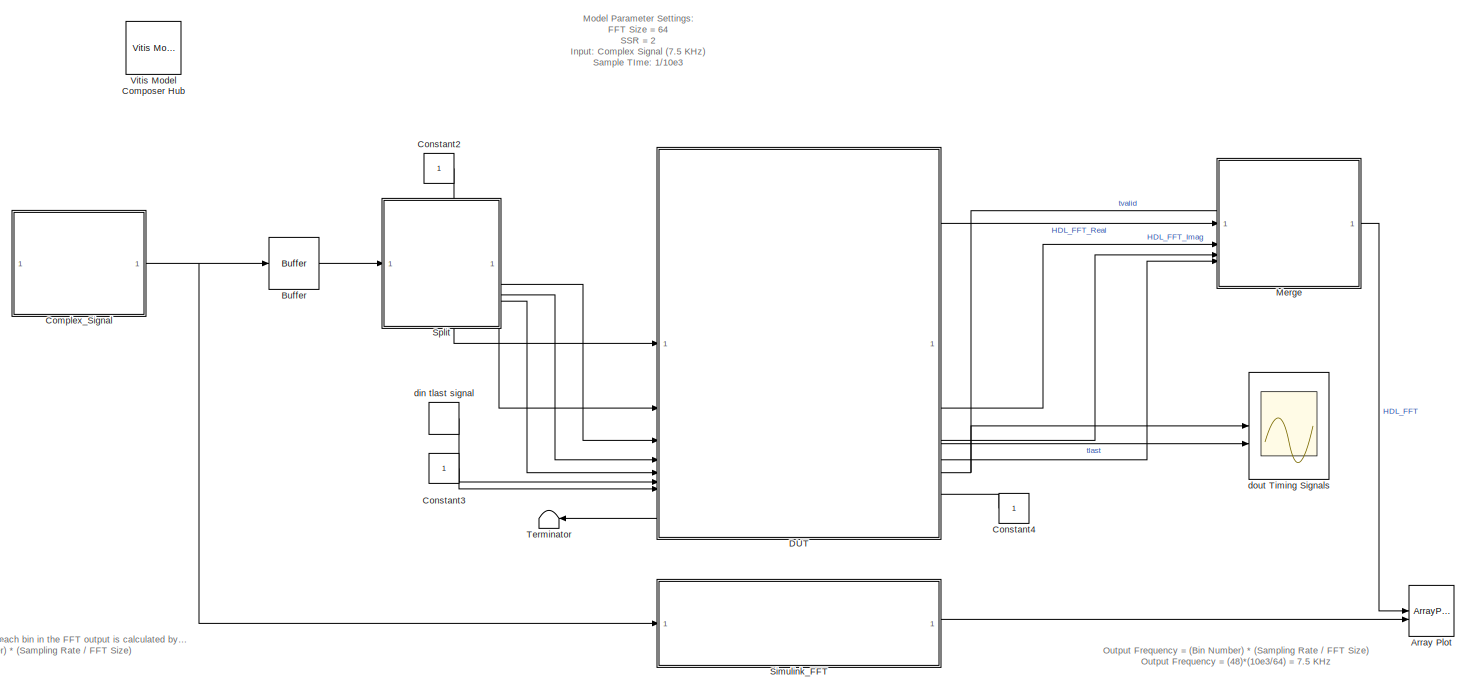
[diagram: root canvas - part 1/3, most of the canvas]
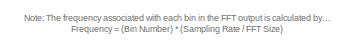
[diagram: root canvas - part 2/3, bottom left region]
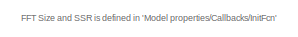
[diagram: root canvas - part 3/3, bottom left region]
MODEL slx_f10399cf9ac3
KIND model
CONFIG AbsTol = auto
CONFIG EnableMultiTasking = on
CONFIG FixedStep = auto
CONFIG InitFcn = FFT_Size = 64;\nSSR = 2;\n
CONFIG MaxStep = auto
CONFIG MinStep = auto
CONFIG RelTol = 1e-3
CONFIG SampleTimeConstraint = Unconstrained
CONFIG SolverName = ode45
CONFIG StartTime = 0.0
CONFIG StopTime = 1024/10e3
BLOCK [ArrayPlot] Array Plot
  GraphicalSettings = {"Style":{"BackgroundColor":[0.12941176470588237,0.12941176470588237,0.12941176470588237],"AxesColor":[0.070588235294117646,0.070588235294117646,0.070588235294117646],"LabelsColor":[0.85098039215686272,0.85098039215686272,0.85098039215686272],"PreserveColors":false,"Visible":[true,true],"LineStyle":["-","-"],"LineWidth":[1.5,1.5],"BarWidth":[0.9,0.9],"LineColor":[[1,0.90980392156862744,0.392156862...<+722ch>
  NumInputPorts = 2
  ScopeFrameLocation = window
  ShowLegend = on
  WasSavedAsWebScope = on
  WindowPosition = [441.000000,53.000000,1920.000000,1149.000000,]
  YLimits = [-0.0625 0.5625]
BLOCK [Buffer] Buffer
  N = 2
  OutputFrames = off
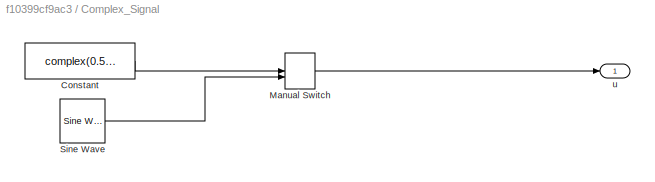
BLOCK [SubSystem] Complex_Signal
BLOCK [Constant] Complex_Signal/Constant
  SampleTime = 1/10e3
  Value = complex(0.5,0)
BLOCK [ManualSwitch] Complex_Signal/Manual Switch
  CurrentSetting = 0
BLOCK [Reference] Complex_Signal/Sine Wave  REF=dspsrcs4/Sine Wave
  LibrarySourceBlock = dsphdlsupportsrcs/Sine Wave
  SourceBlock = dspsrcs4/Sine Wave
  SourceType = Sine Wave
BLOCK [Outport] Complex_Signal/u
BLOCK [Constant] Constant2
BLOCK [Constant] Constant3
BLOCK [Constant] Constant4
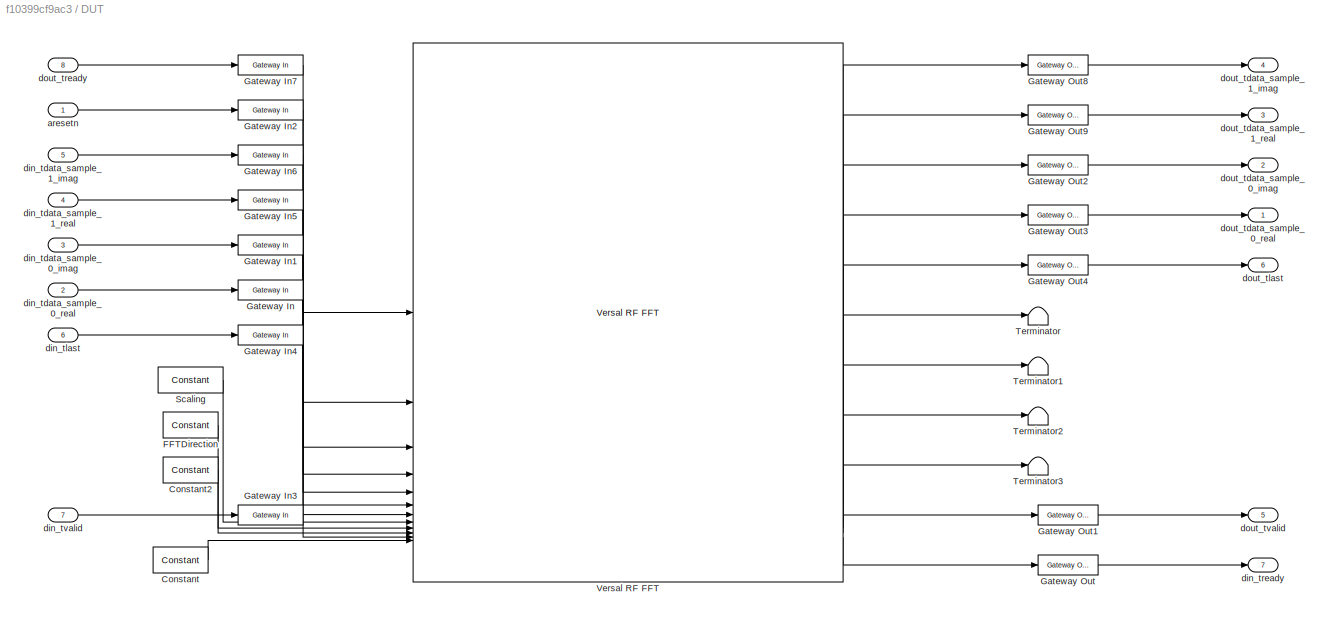
BLOCK [SubSystem] DUT
  PortSchema = {"entries":[{"content":{"sides":[{"content":{"connectorIds":["In1","In2","In3","In4","In5","In6","In7","Out7"]},"type":"ConnectorPlacement.EquallySpacedRectSide","uuid":"7436daa8-65ee-46b9-a81c-9583a83f8d38"},{"content":{"connectorIds":["Out1","Out2","Out3","Out4","Out5","Out6","In8"],"side":"RIGHT"},"type":"ConnectorPlacement.EquallySpacedRectSide","uuid":"6a20372f-450e-4cce-a22e-025dd43b4db4"},{...<+306ch>
BLOCK [Reference] DUT/Constant  REF=hdlBasic/Constant
  SourceBlock = hdlBasic/Constant
  SourceType = Constant Block Block
BLOCK [Reference] DUT/Constant2  REF=hdlBasic/Constant
  SourceBlock = hdlBasic/Constant
  SourceType = Constant Block Block
BLOCK [Reference] DUT/FFTDirection  REF=hdlBasic/Constant
  SourceBlock = hdlBasic/Constant
  SourceType = Constant Block Block
BLOCK [Reference] DUT/Gateway In  REF=hdlBasic/Gateway In
  SourceBlock = hdlBasic/Gateway In
  SourceType = Gateway In Block
BLOCK [Reference] DUT/Gateway In1  REF=hdlBasic/Gateway In
  SourceBlock = hdlBasic/Gateway In
  SourceType = Gateway In Block
BLOCK [Reference] DUT/Gateway In2  REF=hdlBasic/Gateway In
  SourceBlock = hdlBasic/Gateway In
  SourceType = Gateway In Block
BLOCK [Reference] DUT/Gateway In3  REF=hdlBasic/Gateway In
  SourceBlock = hdlBasic/Gateway In
  SourceType = Gateway In Block
BLOCK [Reference] DUT/Gateway In4  REF=hdlBasic/Gateway In
  SourceBlock = hdlBasic/Gateway In
  SourceType = Gateway In Block
BLOCK [Reference] DUT/Gateway In5  REF=hdlBasic/Gateway In
  SourceBlock = hdlBasic/Gateway In
  SourceType = Gateway In Block
BLOCK [Reference] DUT/Gateway In6  REF=hdlBasic/Gateway In
  SourceBlock = hdlBasic/Gateway In
  SourceType = Gateway In Block
BLOCK [Reference] DUT/Gateway In7  REF=hdlBasic/Gateway In
  SourceBlock = hdlBasic/Gateway In
  SourceType = Gateway In Block
BLOCK [Reference] DUT/Gateway Out  REF=hdlBasic/Gateway Out
  SourceBlock = hdlBasic/Gateway Out
  SourceType = Gateway Out Block
BLOCK [Reference] DUT/Gateway Out1  REF=hdlBasic/Gateway Out
  SourceBlock = hdlBasic/Gateway Out
  SourceType = Gateway Out Block
BLOCK [Reference] DUT/Gateway Out2  REF=hdlBasic/Gateway Out
  SourceBlock = hdlBasic/Gateway Out
  SourceType = Gateway Out Block
BLOCK [Reference] DUT/Gateway Out3  REF=hdlBasic/Gateway Out
  SourceBlock = hdlBasic/Gateway Out
  SourceType = Gateway Out Block
BLOCK [Reference] DUT/Gateway Out4  REF=hdlBasic/Gateway Out
  SourceBlock = hdlBasic/Gateway Out
  SourceType = Gateway Out Block
BLOCK [Reference] DUT/Gateway Out8  REF=hdlBasic/Gateway Out
  SourceBlock = hdlBasic/Gateway Out
  SourceType = Gateway Out Block
BLOCK [Reference] DUT/Gateway Out9  REF=hdlBasic/Gateway Out
  SourceBlock = hdlBasic/Gateway Out
  SourceType = Gateway Out Block
BLOCK [Reference] DUT/Scaling  REF=hdlBasic/Constant
  SourceBlock = hdlBasic/Constant
  SourceType = Constant Block Block
BLOCK [Terminator] DUT/Terminator
BLOCK [Terminator] DUT/Terminator1
BLOCK [Terminator] DUT/Terminator2
BLOCK [Terminator] DUT/Terminator3
BLOCK [Reference] DUT/Versal RF FFT  REF=hdlDSPIP/Versal RF FFT
  SourceBlock = hdlDSPIP/Versal RF FFT
  SourceType = Versal RF FFT Block
BLOCK [Inport] DUT/aresetn
BLOCK [Inport] DUT/din_tdata_sample_0_imag
  Port = 3
BLOCK [Inport] DUT/din_tdata_sample_0_real
  Port = 2
BLOCK [Inport] DUT/din_tdata_sample_1_imag
  Port = 5
BLOCK [Inport] DUT/din_tdata_sample_1_real
  Port = 4
BLOCK [Inport] DUT/din_tlast
  Port = 6
BLOCK [Outport] DUT/din_tready
  Port = 7
BLOCK [Inport] DUT/din_tvalid
  Port = 7
BLOCK [Outport] DUT/dout_tdata_sample_0_imag
  Port = 2
BLOCK [Outport] DUT/dout_tdata_sample_0_real
BLOCK [Outport] DUT/dout_tdata_sample_1_imag
  Port = 4
BLOCK [Outport] DUT/dout_tdata_sample_1_real
  Port = 3
BLOCK [Outport] DUT/dout_tlast
  Port = 6
BLOCK [Inport] DUT/dout_tready
  Port = 8
BLOCK [Outport] DUT/dout_tvalid
  Port = 5
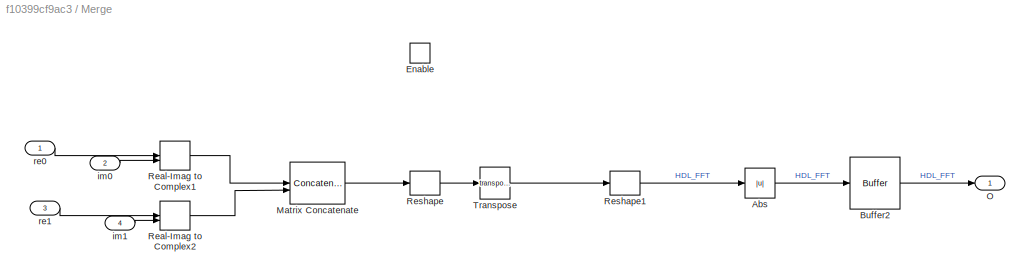
BLOCK [SubSystem] Merge
BLOCK [Abs] Merge/Abs
  SaturateOnIntegerOverflow = off
BLOCK [Buffer] Merge/Buffer2
  OutputFrames = off
BLOCK [EnablePort] Merge/Enable
BLOCK [Concatenate] Merge/Matrix Concatenate
  Mode = Multidimensional array
  NumInputs = SSR
BLOCK [Outport] Merge/O
BLOCK [RealImagToComplex] Merge/Real-Imag to Complex1
BLOCK [RealImagToComplex] Merge/Real-Imag to Complex2
BLOCK [Reshape] Merge/Reshape
  OutputDimensionality = Customize
  OutputDimensions = [1, SSR]
BLOCK [Reshape] Merge/Reshape1
  OutputDimensions = [1, 10]
BLOCK [Math] Merge/Transpose
  Operator = transpose
BLOCK [Inport] Merge/im0
  Port = 2
BLOCK [Inport] Merge/im1
  Port = 4
BLOCK [Inport] Merge/re0
BLOCK [Inport] Merge/re1
  Port = 3
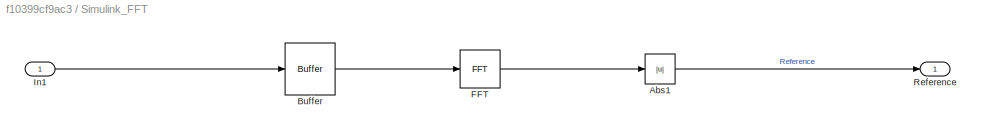
BLOCK [SubSystem] Simulink_FFT
BLOCK [Abs] Simulink_FFT/Abs1
  SaturateOnIntegerOverflow = off
BLOCK [Buffer] Simulink_FFT/Buffer
  OutputFrames = off
BLOCK [Reference] Simulink_FFT/FFT  REF=dspxfrm3/FFT
  SourceBlock = dspxfrm3/FFT
  SourceType = FFT
BLOCK [Inport] Simulink_FFT/In1
BLOCK [Outport] Simulink_FFT/Reference
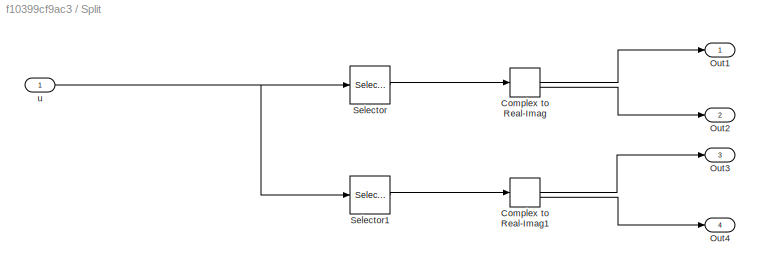
BLOCK [SubSystem] Split
BLOCK [ComplexToRealImag] Split/Complex to Real-Imag
BLOCK [ComplexToRealImag] Split/Complex to Real-Imag1
BLOCK [Outport] Split/Out1
BLOCK [Outport] Split/Out2
  Port = 2
BLOCK [Outport] Split/Out3
  Port = 3
BLOCK [Outport] Split/Out4
  Port = 4
BLOCK [Selector] Split/Selector
  IndexOptions = Index vector (dialog)
  Indices = [1:2:2]
  InputPortWidth = 2
  OutputSizes = 1
BLOCK [Selector] Split/Selector1
  IndexOptions = Index vector (dialog)
  Indices = [2:2:2]
  InputPortWidth = 2
  OutputSizes = 1
BLOCK [Inport] Split/u
BLOCK [Terminator] Terminator
BLOCK [Reference] Vitis Model Composer Hub  REF=vmcUtilities/Vitis Model Composer Hub
  SourceBlock = vmcUtilities/Vitis Model Composer Hub
  SourceType = VMC Hub
  Tag = genX
  UserDataPersistent = on
BLOCK [DiscretePulseGenerator] din tlast signal
  Period = 64
  PhaseDelay = 63
  SampleTime = (SSR/1e4)
BLOCK [Scope] dout Timing Signals
  Floating = off
  NumInputPorts = 2
  ScopeSpecificationString = Simulink.scopes.TimeScopeBlockCfg('CurrentConfiguration', extmgr.ConfigurationSet(extmgr.Configuration('Core','General UI',true,'DisplayFullSourceName',false,'ShowMainToolbar',true),extmgr.Configuration('Sources','WiredSimulink',true,'DataLogging',false,'DataLoggingVariableName','ScopeData1','DataLoggingLimitDataPoints',false,'DataLoggingMaxPoints','5000','DataLoggingDecimateData',false,'DataLoggi...<+2861ch>
ANNOTATION (root): Model Parameter Settings: FFT Size = 64 SSR = 2 Input: Complex Signal (7.5 KHz) Sample TIme: 1/10e3
ANNOTATION (root): Output Frequency = (Bin Number) * (Sampling Rate / FFT Size) Output Frequency = (48)*(10e3/64) = 7.5 KHz
ANNOTATION (root): Note: The frequency associated with each bin in the FFT output is calculated by dividing the bin number (starting from 0) by the FFT size and then multiplying by the sampling rate. Frequency = (Bin Number) * (Sampling Rate / FFT Size)
ANNOTATION (root): FFT Size and SSR is defined in 'Model properties/Callbacks/InitFcn'
LINE Buffer:1 -> Split:1
LINE Complex_Signal/Constant:1 -> Complex_Signal/Manual Switch:1
LINE Complex_Signal/Manual Switch:1 -> Complex_Signal/u:1
LINE Complex_Signal/Sine Wave:1 -> Complex_Signal/Manual Switch:2
NET Complex_Signal:1 -> Buffer:1, Simulink_FFT:1
LINE Constant2:1 -> DUT:1
LINE Constant3:1 -> DUT:7
LINE Constant4:1 -> DUT:8
LINE DUT/Constant2:1 -> DUT/Versal RF FFT:10
LINE DUT/Constant:1 -> DUT/Versal RF FFT:12
LINE DUT/FFTDirection:1 -> DUT/Versal RF FFT:9
LINE DUT/Gateway In1:1 -> DUT/Versal RF FFT:5
LINE DUT/Gateway In2:1 -> DUT/Versal RF FFT:2
LINE DUT/Gateway In3:1 -> DUT/Versal RF FFT:11
LINE DUT/Gateway In4:1 -> DUT/Versal RF FFT:7
LINE DUT/Gateway In5:1 -> DUT/Versal RF FFT:4
LINE DUT/Gateway In6:1 -> DUT/Versal RF FFT:3
LINE DUT/Gateway In7:1 -> DUT/Versal RF FFT:1
LINE DUT/Gateway In:1 -> DUT/Versal RF FFT:6
LINE DUT/Gateway Out1:1 -> DUT/dout_tvalid:1
LINE DUT/Gateway Out2:1 -> DUT/dout_tdata_sample_0_imag:1
LINE DUT/Gateway Out3:1 -> DUT/dout_tdata_sample_0_real:1
LINE DUT/Gateway Out4:1 -> DUT/dout_tlast:1
LINE DUT/Gateway Out8:1 -> DUT/dout_tdata_sample_1_imag:1
LINE DUT/Gateway Out9:1 -> DUT/dout_tdata_sample_1_real:1
LINE DUT/Gateway Out:1 -> DUT/din_tready:1
LINE DUT/Scaling:1 -> DUT/Versal RF FFT:8
LINE DUT/Versal RF FFT:1 -> DUT/Gateway Out8:1
LINE DUT/Versal RF FFT:10 -> DUT/Gateway Out1:1
LINE DUT/Versal RF FFT:11 -> DUT/Gateway Out:1
LINE DUT/Versal RF FFT:2 -> DUT/Gateway Out9:1
LINE DUT/Versal RF FFT:3 -> DUT/Gateway Out2:1
LINE DUT/Versal RF FFT:4 -> DUT/Gateway Out3:1
LINE DUT/Versal RF FFT:5 -> DUT/Gateway Out4:1
LINE DUT/Versal RF FFT:6 -> DUT/Terminator:1
LINE DUT/Versal RF FFT:7 -> DUT/Terminator1:1
LINE DUT/Versal RF FFT:8 -> DUT/Terminator2:1
LINE DUT/Versal RF FFT:9 -> DUT/Terminator3:1
LINE DUT/aresetn:1 -> DUT/Gateway In2:1
LINE DUT/din_tdata_sample_0_imag:1 -> DUT/Gateway In1:1
LINE DUT/din_tdata_sample_0_real:1 -> DUT/Gateway In:1
LINE DUT/din_tdata_sample_1_imag:1 -> DUT/Gateway In6:1
LINE DUT/din_tdata_sample_1_real:1 -> DUT/Gateway In5:1
LINE DUT/din_tlast:1 -> DUT/Gateway In4:1
LINE DUT/din_tvalid:1 -> DUT/Gateway In3:1
LINE DUT/dout_tready:1 -> DUT/Gateway In7:1
LINE DUT:1 -> Merge:1
LINE DUT:2 -> Merge:2
LINE DUT:3 -> Merge:3
LINE DUT:4 -> Merge:4
NET DUT:5 -> Merge:enable, dout Timing Signals:1
LINE DUT:6 -> dout Timing Signals:2
LINE DUT:7 -> Terminator:1
LINE Merge/Abs:1 -> Merge/Buffer2:1
LINE Merge/Buffer2:1 -> Merge/O:1
LINE Merge/Matrix Concatenate:1 -> Merge/Reshape:1
LINE Merge/Real-Imag to Complex1:1 -> Merge/Matrix Concatenate:1
LINE Merge/Real-Imag to Complex2:1 -> Merge/Matrix Concatenate:2
LINE Merge/Reshape1:1 -> Merge/Abs:1
LINE Merge/Reshape:1 -> Merge/Transpose:1
LINE Merge/Transpose:1 -> Merge/Reshape1:1
LINE Merge/im0:1 -> Merge/Real-Imag to Complex1:2
LINE Merge/im1:1 -> Merge/Real-Imag to Complex2:2
LINE Merge/re0:1 -> Merge/Real-Imag to Complex1:1
LINE Merge/re1:1 -> Merge/Real-Imag to Complex2:1
LINE Merge:1 -> Array Plot:1
LINE Simulink_FFT/Abs1:1 -> Simulink_FFT/Reference:1
LINE Simulink_FFT/Buffer:1 -> Simulink_FFT/FFT:1
LINE Simulink_FFT/FFT:1 -> Simulink_FFT/Abs1:1
LINE Simulink_FFT/In1:1 -> Simulink_FFT/Buffer:1
LINE Simulink_FFT:1 -> Array Plot:2
LINE Split/Complex to Real-Imag1:1 -> Split/Out3:1
LINE Split/Complex to Real-Imag1:2 -> Split/Out4:1
LINE Split/Complex to Real-Imag:1 -> Split/Out1:1
LINE Split/Complex to Real-Imag:2 -> Split/Out2:1
LINE Split/Selector1:1 -> Split/Complex to Real-Imag1:1
LINE Split/Selector:1 -> Split/Complex to Real-Imag:1
NET Split/u:1 -> Split/Selector1:1, Split/Selector:1
LINE Split:1 -> DUT:2
LINE Split:2 -> DUT:3
LINE Split:3 -> DUT:4
LINE Split:4 -> DUT:5
LINE din tlast signal:1 -> DUT:6
note: NET lines group one-source signal fan-out (src -> all destinations, sorted); 1:1 wires keep LINE
